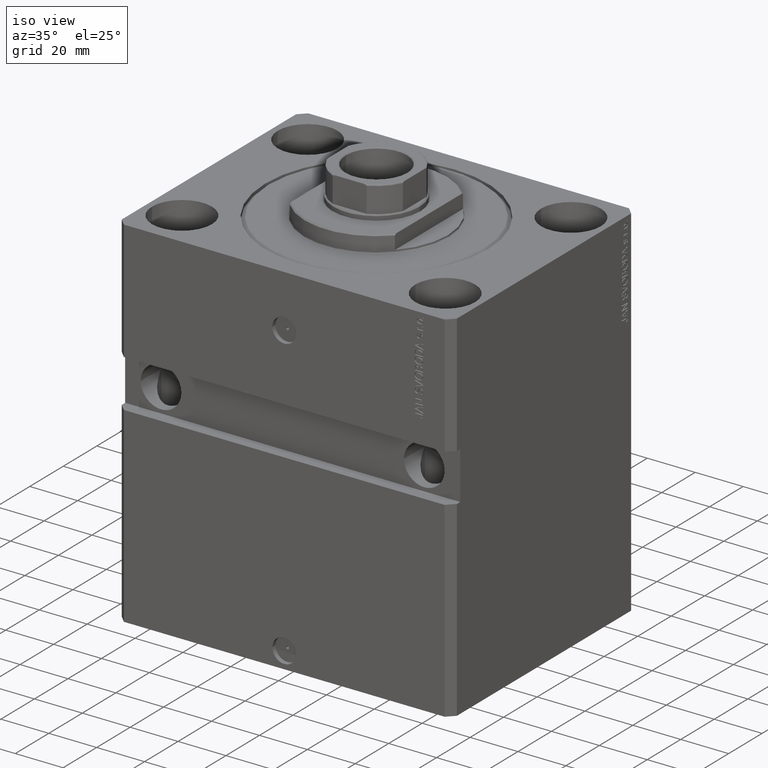
[diagram: clean part render]
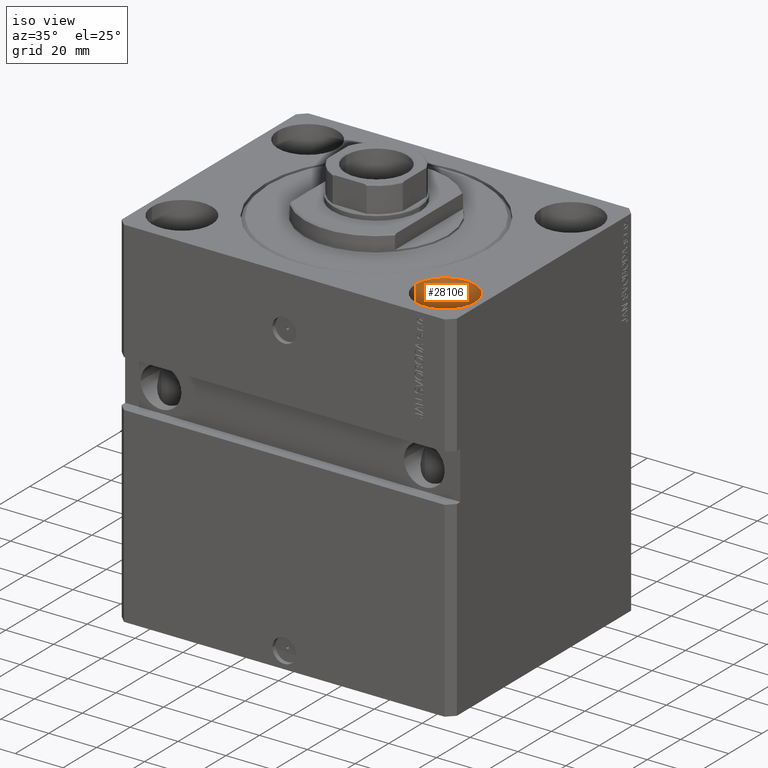
[diagram: same view with one face highlighted and labeled with its STEP entity id]
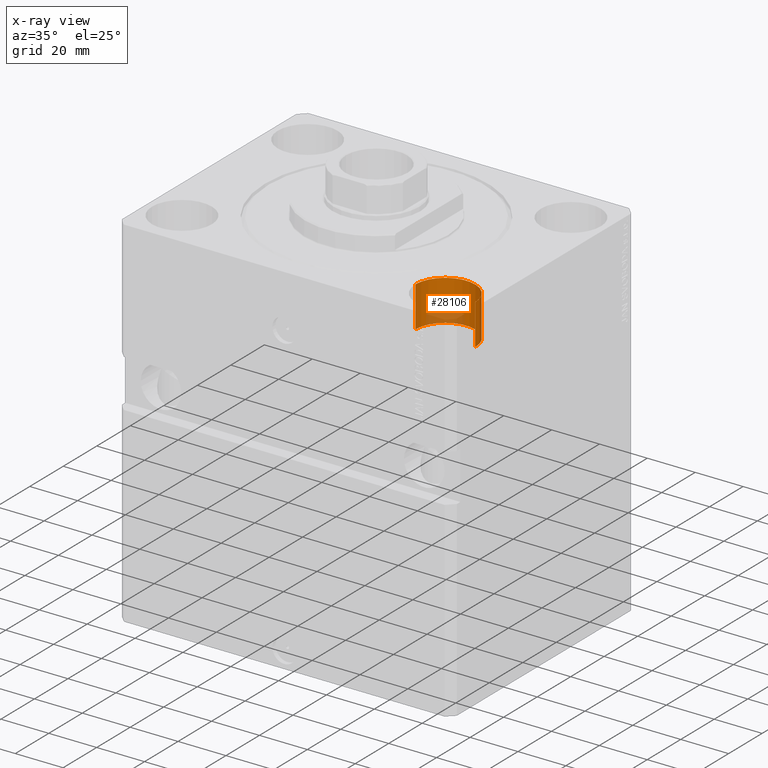
[diagram: x-ray of the same camera — body ghosted, the highlighted face saturated]
A machine part, iso view. The second image highlights one B-rep face of the part: STEP entity #28106.
The next image is the same camera in x-ray: the body ghosted, the highlighted face saturated — about 14% of this face is hidden behind the body in this view.
In plain terms, the highlighted cylindrical surface (edge-blend (fillet) strip) has radius 12.5 mm, axis along (0, 0, 1).
Its self-contained STEP definition (entity closure, byte-faithful):
#556 = VERTEX_POINT ( 'NONE', #2291 ) ;
#1437 = AXIS2_PLACEMENT_3D ( 'NONE', #34464, #2985, #14575 ) ;
#2291 = CARTESIAN_POINT ( 'NONE',  ( 42.50000000000000711, -37.50000000000000711, 0.000000000000000000 ) ) ;
#2985 = DIRECTION ( 'NONE',  ( -0.000000000000000000, -0.000000000000000000, 1.000000000000000000 ) ) ;
#3483 = DIRECTION ( 'NONE',  ( 1.000000000000000000, 0.000000000000000000, 0.000000000000000000 ) ) ;
#3495 = AXIS2_PLACEMENT_3D ( 'NONE', #44688, #40988, #3483 ) ;
#3845 = DIRECTION ( 'NONE',  ( 0.000000000000000000, 0.000000000000000000, 1.000000000000000000 ) ) ;
#5714 = ORIENTED_EDGE ( 'NONE', *, *, #17356, .F. ) ;
#5930 = VERTEX_POINT ( 'NONE', #14740 ) ;
#6647 = CARTESIAN_POINT ( 'NONE',  ( 67.50000000000000000, -37.50000000000000711, 0.000000000000000000 ) ) ;
#8372 = ORIENTED_EDGE ( 'NONE', *, *, #19542, .T. ) ;
#12780 = VERTEX_POINT ( 'NONE', #6647 ) ;
#13290 = CARTESIAN_POINT ( 'NONE',  ( 42.50000000000000711, -37.50000000000000711, -17.00000000000000000 ) ) ;
#14461 = EDGE_LOOP ( 'NONE', ( #25178, #5714, #37003, #8372 ) ) ;
#14575 = DIRECTION ( 'NONE',  ( 1.000000000000000000, 0.000000000000000000, 0.000000000000000000 ) ) ;
#14740 = CARTESIAN_POINT ( 'NONE',  ( 67.50000000000000000, -37.50000000000000711, -17.00000000000000000 ) ) ;
#14905 = LINE ( 'NONE', #18141, #19488 ) ;
#15318 = CIRCLE ( 'NONE', #3495, 12.49999999999999645 ) ;
#17356 = EDGE_CURVE ( 'NONE', #5930, #31244, #30039, .T. ) ;
#18141 = CARTESIAN_POINT ( 'NONE',  ( 67.50000000000000000, -37.50000000000000711, -17.00000000000000000 ) ) ;
#18429 = CARTESIAN_POINT ( 'NONE',  ( 55.00000000000000711, -37.50000000000000711, -17.00000000000000000 ) ) ;
#19488 = VECTOR ( 'NONE', #29705, 1000.000000000000000 ) ;
#19542 = EDGE_CURVE ( 'NONE', #12780, #556, #15318, .T. ) ;
#25099 = EDGE_CURVE ( 'NONE', #5930, #12780, #14905, .T. ) ;
#25178 = ORIENTED_EDGE ( 'NONE', *, *, #39912, .F. ) ;
#26058 = DIRECTION ( 'NONE',  ( 1.000000000000000000, 0.000000000000000000, 0.000000000000000000 ) ) ;
#26829 = FACE_OUTER_BOUND ( 'NONE', #14461, .T. ) ;
#27427 = LINE ( 'NONE', #42481, #42678 ) ;
#28106 = ADVANCED_FACE ( 'NONE', ( #26829 ), #37029, .F. ) ;
#29705 = DIRECTION ( 'NONE',  ( -0.000000000000000000, -0.000000000000000000, 1.000000000000000000 ) ) ;
#30039 = CIRCLE ( 'NONE', #33981, 12.49999999999999645 ) ;
#31244 = VERTEX_POINT ( 'NONE', #13290 ) ;
#33981 = AXIS2_PLACEMENT_3D ( 'NONE', #18429, #3845, #26058 ) ;
#34464 = CARTESIAN_POINT ( 'NONE',  ( 55.00000000000000711, -37.50000000000000711, -17.00000000000000000 ) ) ;
#34831 = DIRECTION ( 'NONE',  ( -0.000000000000000000, -0.000000000000000000, 1.000000000000000000 ) ) ;
#37003 = ORIENTED_EDGE ( 'NONE', *, *, #25099, .T. ) ;
#37029 = CYLINDRICAL_SURFACE ( 'NONE', #1437, 12.49999999999999645 ) ;
#39912 = EDGE_CURVE ( 'NONE', #31244, #556, #27427, .T. ) ;
#40988 = DIRECTION ( 'NONE',  ( 0.000000000000000000, 0.000000000000000000, 1.000000000000000000 ) ) ;
#42481 = CARTESIAN_POINT ( 'NONE',  ( 42.50000000000000711, -37.50000000000000711, -17.00000000000000000 ) ) ;
#42678 = VECTOR ( 'NONE', #34831, 1000.000000000000000 ) ;
#44688 = CARTESIAN_POINT ( 'NONE',  ( 55.00000000000000711, -37.50000000000000711, 0.000000000000000000 ) ) ;